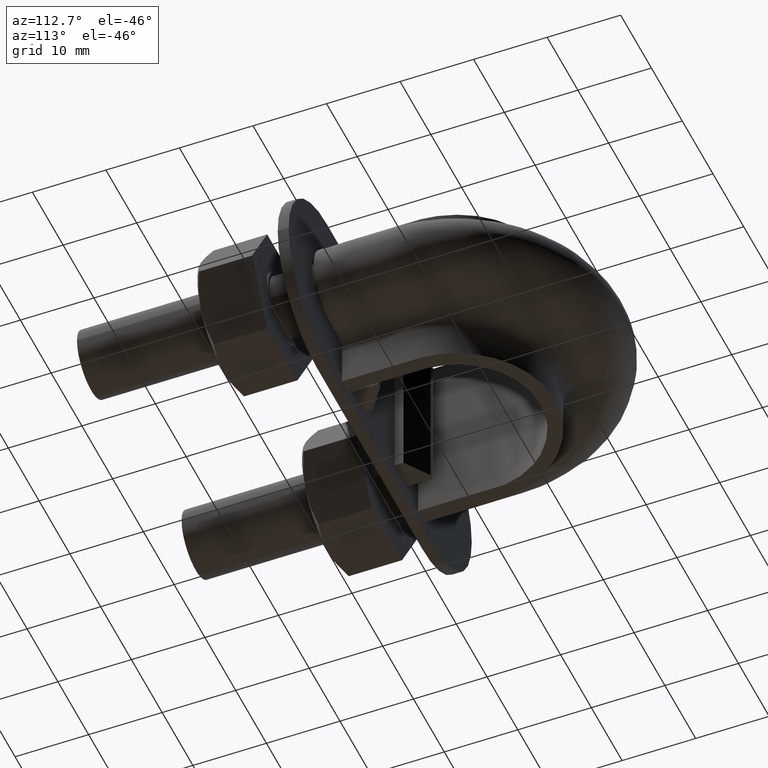
[diagram: clean part render]
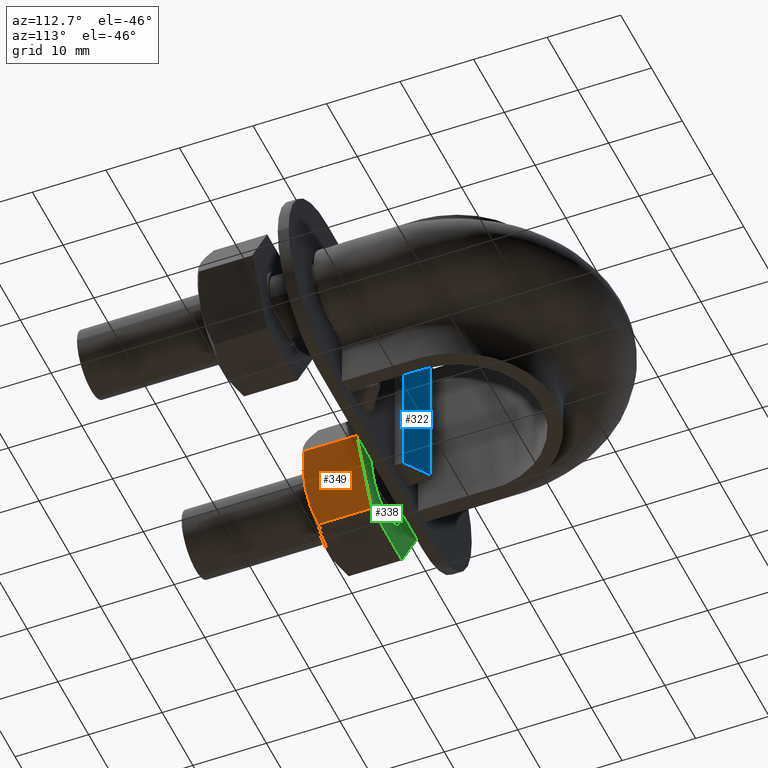
[diagram: same view with three faces highlighted in distinct colors, each labeled with its STEP entity id]
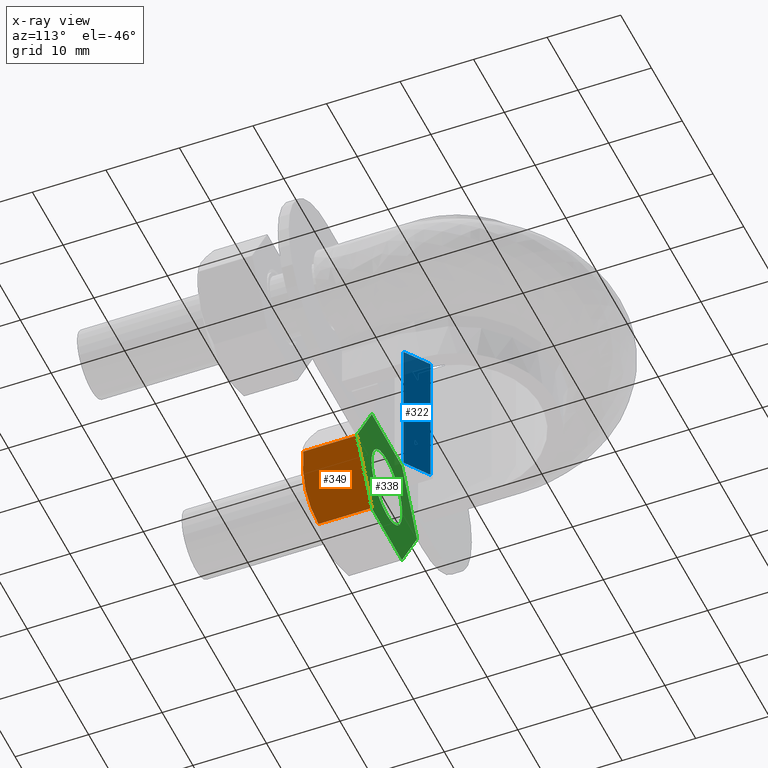
[diagram: x-ray of the same camera — body ghosted, the three highlighted faces saturated]
A machine part, auxiliary view with three faces highlighted in distinct colors.
The next image is the same camera in x-ray (body ghosted, the three faces saturated) — at least one of them is partly hidden behind the body in this view.
Their STEP definitions:

[orange] entity #349 — the highlighted planar face has unit normal (-0.866, 0, 0.5).
#349 = ADVANCED_FACE( '', ( #568 ), #569, .F. );
#568 = FACE_OUTER_BOUND( '', #1732, .T. );
#569 = PLANE( '', #1733 );
#1732 = EDGE_LOOP( '', ( #2405, #2406, #2407, #2408, #2409 ) );
#1733 = AXIS2_PLACEMENT_3D( '', #2410, #2411, #2412 );
#2405 = ORIENTED_EDGE( '', *, *, #2779, .F. );
#2406 = ORIENTED_EDGE( '', *, *, #2812, .F. );
#2407 = ORIENTED_EDGE( '', *, *, #2813, .F. );
#2408 = ORIENTED_EDGE( '', *, *, #2786, .F. );
#2409 = ORIENTED_EDGE( '', *, *, #2806, .F. );
#2410 = CARTESIAN_POINT( '', ( -7.18504542377828, 26.0000000000000, -3.14573569224819E-008 ) );
#2411 = DIRECTION( '', ( -0.866025402181909, 3.65183837094280E-016, 0.500000002775663 ) );
#2412 = DIRECTION( '', ( 0.500000002775663, 1.42674416458830E-016, 0.866025402181909 ) );
#2779 = EDGE_CURVE( '', #3108, #3121, #3122, .T. );
#2786 = EDGE_CURVE( '', #3132, #3134, #3135, .T. );
#2806 = EDGE_CURVE( '', #3121, #3132, #3165, .T. );
#2812 = EDGE_CURVE( '', #3173, #3108, #3174, .T. );
#2813 = EDGE_CURVE( '', #3134, #3173, #3175, .F. );
#3108 = VERTEX_POINT( '', #3788 );
#3121 = VERTEX_POINT( '', #3809 );
#3122 = B_SPLINE_CURVE_WITH_KNOTS( '', 3, ( #3810, #3811, #3812, #3813, #3814, #3815, #3816, #3817 ), .UNSPECIFIED., .F., .F., ( 4, 2, 2, 4 ), ( 0.00493529902949308, 0.00616408349151699, 0.00739286795354089, 0.00985043687758870 ), .UNSPECIFIED. );
#3132 = VERTEX_POINT( '', #3828 );
#3134 = VERTEX_POINT( '', #3830 );
#3135 = LINE( '', #3831, #3832 );
#3165 = LINE( '', #3900, #3901 );
#3173 = VERTEX_POINT( '', #3921 );
#3174 = B_SPLINE_CURVE_WITH_KNOTS( '', 3, ( #3922, #3923, #3924, #3925, #3926, #3927 ), .UNSPECIFIED., .F., .F., ( 4, 2, 4 ), ( 7.17194508351798E-007, 0.00246800811200072, 0.00493529902949308 ), .UNSPECIFIED. );
#3175 = LINE( '', #3928, #3929 );
#3788 = CARTESIAN_POINT( '', ( -9.63878408145514, 18.0000000000003, -4.25000002359235 ) );
#3809 = CARTESIAN_POINT( '', ( -7.20003438826595, 18.7505553499468, -0.0259616793106891 ) );
#3810 = CARTESIAN_POINT( '', ( -9.63878408145531, 17.9999999999999, -4.25000002359231 ) );
#3811 = CARTESIAN_POINT( '', ( -9.43192926643156, 17.9999999999999, -3.89171697683284 ) );
#3812 = CARTESIAN_POINT( '', ( -9.22404066835170, 18.0177112141219, -3.53164336530944 ) );
#3813 = CARTESIAN_POINT( '', ( -8.81278457604122, 18.0863020976798, -2.81932692377785 ) );
#3814 = CARTESIAN_POINT( '', ( -8.60852351673771, 18.1371114863338, -2.46553639367500 ) );
#3815 = CARTESIAN_POINT( '', ( -7.99935022996412, 18.3331491064654, -1.41041731817917 ) );
#3816 = CARTESIAN_POINT( '', ( -7.59803450452308, 18.5218250443848, -0.715318096983895 ) );
#3817 = CARTESIAN_POINT( '', ( -7.20003438826591, 18.7505553499463, -0.0259616793106172 ) );
#3828 = CARTESIAN_POINT( '', ( -7.20003438826595, 26.0000000000000, -0.0259616793106938 ) );
#3830 = CARTESIAN_POINT( '', ( -12.0775337746443, 26.0000000000000, -8.47403836787402 ) );
#3831 = CARTESIAN_POINT( '', ( -12.0887840950553, 26.0000000000000, -8.49352449428309 ) );
#3832 = VECTOR( '', #4336, 999.999999999965 );
#3900 = CARTESIAN_POINT( '', ( -7.20003438826595, 26.0000000000000, -0.0259616793106933 ) );
#3901 = VECTOR( '', #4361, 1000.00000000009 );
#3921 = CARTESIAN_POINT( '', ( -12.0775337746443, 18.7505553499468, -8.47403836787402 ) );
#3922 = CARTESIAN_POINT( '', ( -12.0775337746447, 18.7505553499463, -8.47403836787391 ) );
#3923 = CARTESIAN_POINT( '', ( -11.6784820056574, 18.5212206605154, -7.78286043425368 ) );
#3924 = CARTESIAN_POINT( '', ( -11.2765479102334, 18.3324529479803, -7.08669016483801 ) );
#3925 = CARTESIAN_POINT( '', ( -10.4644024443565, 18.0714150925759, -5.68001296521440 ) );
#3926 = CARTESIAN_POINT( '', ( -10.0541303216796, 17.9999999999999, -4.96940080906866 ) );
#3927 = CARTESIAN_POINT( '', ( -9.63878408145531, 17.9999999999999, -4.25000002359231 ) );
#3928 = CARTESIAN_POINT( '', ( -12.0775337746443, 26.0000000000000, -8.47403836787402 ) );
#3929 = VECTOR( '', #4367, 1000.00000000009 );
#4336 = DIRECTION( '', ( -0.500000002775633, -1.42674416458842E-016, -0.866025402181926 ) );
#4361 = DIRECTION( '', ( 2.44921270764475E-016, 1.00000000000000, -3.06151588455594E-016 ) );
#4367 = DIRECTION( '', ( 2.44921270764475E-016, 1.00000000000000, -3.06151588455594E-016 ) );

[blue] entity #322 — the highlighted planar face has unit normal (0.5736, 0.8192, -0).
#322 = ADVANCED_FACE( '', ( #512 ), #513, .T. );
#512 = FACE_OUTER_BOUND( '', #1676, .T. );
#513 = PLANE( '', #1677 );
#1676 = EDGE_LOOP( '', ( #2197, #2198, #2199, #2200 ) );
#1677 = AXIS2_PLACEMENT_3D( '', #2201, #2202, #2203 );
#2197 = ORIENTED_EDGE( '', *, *, #2749, .F. );
#2198 = ORIENTED_EDGE( '', *, *, #2748, .F. );
#2199 = ORIENTED_EDGE( '', *, *, #2750, .T. );
#2200 = ORIENTED_EDGE( '', *, *, #2751, .T. );
#2201 = CARTESIAN_POINT( '', ( -4.95000003205035, 33.2999999999964, -9.99999998413562 ) );
#2202 = DIRECTION( '', ( 0.573576436351102, 0.819152044288952, -1.83865814077140E-009 ) );
#2203 = DIRECTION( '', ( 0.819152044288952, -0.573576436351102, -2.62519230750652E-009 ) );
#2748 = EDGE_CURVE( '', #3069, #3067, #3071, .T. );
#2749 = EDGE_CURVE( '', #3067, #3072, #3073, .T. );
#2750 = EDGE_CURVE( '', #3069, #3074, #3075, .T. );
#2751 = EDGE_CURVE( '', #3074, #3072, #3076, .T. );
#3067 = VERTEX_POINT( '', #3716 );
#3069 = VERTEX_POINT( '', #3719 );
#3071 = LINE( '', #3722, #3723 );
#3072 = VERTEX_POINT( '', #3724 );
#3073 = LINE( '', #3725, #3726 );
#3074 = VERTEX_POINT( '', #3727 );
#3075 = LINE( '', #3728, #3729 );
#3076 = LINE( '', #3730, #3731 );
#3716 = CARTESIAN_POINT( '', ( -4.94999996794949, 33.3000000000042, 10.0000000158644 ) );
#3719 = CARTESIAN_POINT( '', ( -4.95000003205034, 33.2999999999964, -9.99999998413562 ) );
#3722 = CARTESIAN_POINT( '', ( -4.95000003205034, 33.2999999999964, -9.99999998413562 ) );
#3723 = VECTOR( '', #4276, 1000.00000000000 );
#3724 = CARTESIAN_POINT( '', ( -8.23474038345621, 35.6000000000045, 10.0000000263912 ) );
#3725 = CARTESIAN_POINT( '', ( -4.94999996794949, 33.3000000000042, 10.0000000158644 ) );
#3726 = VECTOR( '', #4277, 1000.00000000000 );
#3727 = CARTESIAN_POINT( '', ( -8.23474044755706, 35.5999999999966, -9.99999997360879 ) );
#3728 = CARTESIAN_POINT( '', ( -4.95000003205035, 33.2999999999964, -9.99999998413562 ) );
#3729 = VECTOR( '', #4278, 1000.00000000000 );
#3730 = CARTESIAN_POINT( '', ( -8.23474044755706, 35.5999999999966, -9.99999997360879 ) );
#3731 = VECTOR( '', #4279, 1000.00000000000 );
#4276 = DIRECTION( '', ( 3.20504262939720E-009, 3.92126285499763E-013, 1.00000000000000 ) );
#4277 = DIRECTION( '', ( -0.819152044288952, 0.573576436351102, 2.62519249298657E-009 ) );
#4278 = DIRECTION( '', ( -0.819152044288952, 0.573576436351102, 2.62519249298657E-009 ) );
#4279 = DIRECTION( '', ( 3.20504262939720E-009, 3.92126285499763E-013, 1.00000000000000 ) );

[green] entity #338 — the highlighted planar face has unit normal (-0, -1, 0).
#338 = ADVANCED_FACE( '', ( #545, #546 ), #547, .F. );
#545 = FACE_BOUND( '', #1709, .T. );
#546 = FACE_OUTER_BOUND( '', #1710, .T. );
#547 = PLANE( '', #1711 );
#1709 = EDGE_LOOP( '', ( #2315 ) );
#1710 = EDGE_LOOP( '', ( #2316, #2317, #2318, #2319, #2320, #2321, #2322, #2323, #2324, #2325, #2326, #2327 ) );
#1711 = AXIS2_PLACEMENT_3D( '', #2328, #2329, #2330 );
#2315 = ORIENTED_EDGE( '', *, *, #2781, .F. );
#2316 = ORIENTED_EDGE( '', *, *, #2782, .T. );
#2317 = ORIENTED_EDGE( '', *, *, #2783, .T. );
#2318 = ORIENTED_EDGE( '', *, *, #2784, .T. );
#2319 = ORIENTED_EDGE( '', *, *, #2777, .T. );
#2320 = ORIENTED_EDGE( '', *, *, #2785, .T. );
#2321 = ORIENTED_EDGE( '', *, *, #2786, .T. );
#2322 = ORIENTED_EDGE( '', *, *, #2787, .T. );
#2323 = ORIENTED_EDGE( '', *, *, #2788, .T. );
#2324 = ORIENTED_EDGE( '', *, *, #2789, .T. );
#2325 = ORIENTED_EDGE( '', *, *, #2790, .T. );
#2326 = ORIENTED_EDGE( '', *, *, #2791, .T. );
#2327 = ORIENTED_EDGE( '', *, *, #2792, .T. );
#2328 = CARTESIAN_POINT( '', ( -26.7999999999981, 26.0000000000000, 3.14094106651159E-008 ) );
#2329 = DIRECTION( '', ( -2.44921270764475E-016, -1.00000000000000, 3.06151588455594E-016 ) );
#2330 = DIRECTION( '', ( 3.20504273121358E-009, 3.06151587670611E-016, 1.00000000000000 ) );
#2777 = EDGE_CURVE( '', #3118, #3116, #3119, .T. );
#2781 = EDGE_CURVE( '', #3124, #3124, #3125, .T. );
#2782 = EDGE_CURVE( '', #3126, #3127, #3128, .T. );
#2783 = EDGE_CURVE( '', #3127, #3129, #3130, .T. );
#2784 = EDGE_CURVE( '', #3129, #3118, #3131, .T. );
#2785 = EDGE_CURVE( '', #3116, #3132, #3133, .T. );
#2786 = EDGE_CURVE( '', #3132, #3134, #3135, .T. );
#2787 = EDGE_CURVE( '', #3134, #3136, #3137, .T. );
#2788 = EDGE_CURVE( '', #3136, #3138, #3139, .T. );
#2789 = EDGE_CURVE( '', #3138, #3140, #3141, .T. );
#2790 = EDGE_CURVE( '', #3140, #3142, #3143, .T. );
#2791 = EDGE_CURVE( '', #3142, #3144, #3145, .T. );
#2792 = EDGE_CURVE( '', #3144, #3126, #3146, .T. );
#3116 = VERTEX_POINT( '', #3801 );
#3118 = VERTEX_POINT( '', #3804 );
#3119 = LINE( '', #3805, #3806 );
#3124 = VERTEX_POINT( '', #3819 );
#3125 = CIRCLE( '', #3820, 4.99999999999922 );
#3126 = VERTEX_POINT( '', #3821 );
#3127 = VERTEX_POINT( '', #3822 );
#3128 = CIRCLE( '', #3823, 9.79999999999847 );
#3129 = VERTEX_POINT( '', #3824 );
#3130 = LINE( '', #3825, #3826 );
#3131 = CIRCLE( '', #3827, 9.79999999999847 );
#3132 = VERTEX_POINT( '', #3828 );
#3133 = CIRCLE( '', #3829, 9.79999999999847 );
#3134 = VERTEX_POINT( '', #3830 );
#3135 = LINE( '', #3831, #3832 );
#3136 = VERTEX_POINT( '', #3833 );
#3137 = CIRCLE( '', #3834, 9.79999999999847 );
#3138 = VERTEX_POINT( '', #3835 );
#3139 = LINE( '', #3836, #3837 );
#3140 = VERTEX_POINT( '', #3838 );
#3141 = CIRCLE( '', #3839, 9.79999999999847 );
#3142 = VERTEX_POINT( '', #3840 );
#3143 = LINE( '', #3841, #3842 );
#3144 = VERTEX_POINT( '', #3843 );
#3145 = CIRCLE( '', #3844, 9.79999999999847 );
#3146 = LINE( '', #3845, #3846 );
#3801 = CARTESIAN_POINT( '', ( -7.20003438809954, 26.0000000000000, 0.0259616164920608 ) );
#3804 = CARTESIAN_POINT( '', ( -12.0775337203250, 26.0000000000000, 8.47403833632057 ) );
#3805 = CARTESIAN_POINT( '', ( -12.0887840406111, 26.0000000000000, 8.49352446280176 ) );
#3806 = VECTOR( '', #4318, 999.999999999965 );
#3819 = CARTESIAN_POINT( '', ( -17.0000000160252, 26.0000000000000, -4.99999999999923 ) );
#3820 = AXIS2_PLACEMENT_3D( '', #4323, #4324, #4325 );
#3821 = CARTESIAN_POINT( '', ( -21.9224662253557, 26.0000000000000, 8.47403836787400 ) );
#3822 = CARTESIAN_POINT( '', ( -21.8774993320590, 26.0000000000000, 8.50000001563126 ) );
#3823 = AXIS2_PLACEMENT_3D( '', #4326, #4327, #4328 );
#3824 = CARTESIAN_POINT( '', ( -12.1225006134552, 26.0000000000000, 8.49999998436607 ) );
#3825 = CARTESIAN_POINT( '', ( -26.7999999727552, 26.0000000000000, 8.50000003140808 ) );
#3826 = VECTOR( '', #4329, 999.999999999935 );
#3827 = AXIS2_PLACEMENT_3D( '', #4330, #4331, #4332 );
#3828 = CARTESIAN_POINT( '', ( -7.20003438826595, 26.0000000000000, -0.0259616793106938 ) );
#3829 = AXIS2_PLACEMENT_3D( '', #4333, #4334, #4335 );
#3830 = CARTESIAN_POINT( '', ( -12.0775337746443, 26.0000000000000, -8.47403836787402 ) );
#3831 = CARTESIAN_POINT( '', ( -12.0887840950553, 26.0000000000000, -8.49352449428309 ) );
#3832 = VECTOR( '', #4336, 999.999999999965 );
#3833 = CARTESIAN_POINT( '', ( -12.1225006679409, 26.0000000000000, -8.50000001563127 ) );
#3834 = AXIS2_PLACEMENT_3D( '', #4337, #4338, #4339 );
#3835 = CARTESIAN_POINT( '', ( -21.8774993865448, 26.0000000000000, -8.49999998436608 ) );
#3836 = CARTESIAN_POINT( '', ( -26.8000000272409, 26.0000000000000, -8.49999996858926 ) );
#3837 = VECTOR( '', #4340, 999.999999999935 );
#3838 = CARTESIAN_POINT( '', ( -21.9224662796750, 26.0000000000000, -8.47403833632059 ) );
#3839 = AXIS2_PLACEMENT_3D( '', #4341, #4342, #4343 );
#3840 = CARTESIAN_POINT( '', ( -26.7999656119004, 26.0000000000000, -0.0259616164920736 ) );
#3841 = CARTESIAN_POINT( '', ( -26.8112159321865, 26.0000000000000, -0.00647549001089020 ) );
#3842 = VECTOR( '', #4344, 999.999999999965 );
#3843 = CARTESIAN_POINT( '', ( -26.7999656117340, 26.0000000000000, 0.0259616793106750 ) );
#3844 = AXIS2_PLACEMENT_3D( '', #4345, #4346, #4347 );
#3845 = CARTESIAN_POINT( '', ( -26.8112159321450, 26.0000000000000, 0.00647555290160689 ) );
#3846 = VECTOR( '', #4348, 999.999999999965 );
#4318 = DIRECTION( '', ( 0.499999997224336, -3.87595688204539E-016, -0.866025405386969 ) );
#4323 = CARTESIAN_POINT( '', ( -17.0000000000000, 26.0000000000000, -8.10077103053503E-015 ) );
#4324 = DIRECTION( '', ( 2.44921270764475E-016, 1.00000000000000, -3.06151588455594E-016 ) );
#4325 = DIRECTION( '', ( -3.20504273121358E-009, -3.06151587670611E-016, -1.00000000000000 ) );
#4326 = CARTESIAN_POINT( '', ( -17.0000000000000, 26.0000000000000, -8.10077103053503E-015 ) );
#4327 = DIRECTION( '', ( 2.44921270764475E-016, 1.00000000000000, -3.06151588455594E-016 ) );
#4328 = DIRECTION( '', ( -3.20504273121358E-009, -3.06151587670611E-016, -1.00000000000000 ) );
#4329 = DIRECTION( '', ( 1.00000000000000, -2.44921271745704E-016, -3.20504273121358E-009 ) );
#4330 = CARTESIAN_POINT( '', ( -17.0000000000000, 26.0000000000000, -8.10077103053503E-015 ) );
#4331 = DIRECTION( '', ( 2.44921270764475E-016, 1.00000000000000, -3.06151588455594E-016 ) );
#4332 = DIRECTION( '', ( -3.20504273121358E-009, -3.06151587670611E-016, -1.00000000000000 ) );
#4333 = CARTESIAN_POINT( '', ( -17.0000000000000, 26.0000000000000, -8.10077103053503E-015 ) );
#4334 = DIRECTION( '', ( 2.44921270764475E-016, 1.00000000000000, -3.06151588455594E-016 ) );
#4335 = DIRECTION( '', ( -3.20504273121358E-009, -3.06151587670611E-016, -1.00000000000000 ) );
#4336 = DIRECTION( '', ( -0.500000002775633, -1.42674416458842E-016, -0.866025402181926 ) );
#4337 = CARTESIAN_POINT( '', ( -17.0000000000000, 26.0000000000000, -8.10077103053503E-015 ) );
#4338 = DIRECTION( '', ( 2.44921270764475E-016, 1.00000000000000, -3.06151588455594E-016 ) );
#4339 = DIRECTION( '', ( -3.20504273121358E-009, -3.06151587670611E-016, -1.00000000000000 ) );
#4340 = DIRECTION( '', ( -1.00000000000000, 2.44921271745704E-016, 3.20504273121358E-009 ) );
#4341 = CARTESIAN_POINT( '', ( -17.0000000000000, 26.0000000000000, -8.10077103053503E-015 ) );
#4342 = DIRECTION( '', ( 2.44921270764475E-016, 1.00000000000000, -3.06151588455594E-016 ) );
#4343 = DIRECTION( '', ( -3.20504273121358E-009, -3.06151587670611E-016, -1.00000000000000 ) );
#4344 = DIRECTION( '', ( -0.499999997224336, 3.87595688204539E-016, 0.866025405386969 ) );
#4345 = CARTESIAN_POINT( '', ( -17.0000000000000, 26.0000000000000, -8.10077103053503E-015 ) );
#4346 = DIRECTION( '', ( 2.44921270764475E-016, 1.00000000000000, -3.06151588455594E-016 ) );
#4347 = DIRECTION( '', ( -3.20504273121358E-009, -3.06151587670611E-016, -1.00000000000000 ) );
#4348 = DIRECTION( '', ( 0.500000002775633, 1.42674416458842E-016, 0.866025402181926 ) );